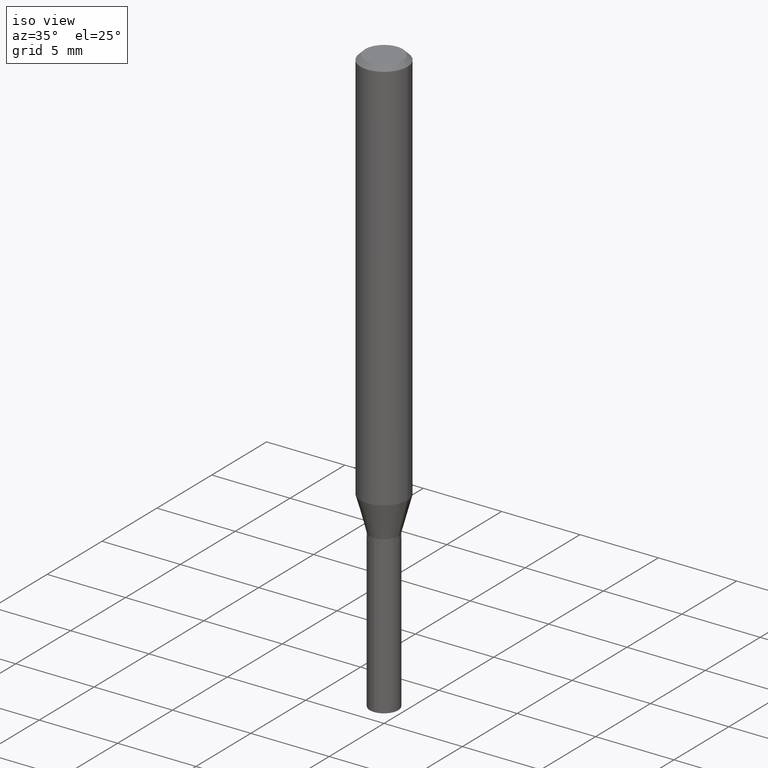
[diagram: clean part render]
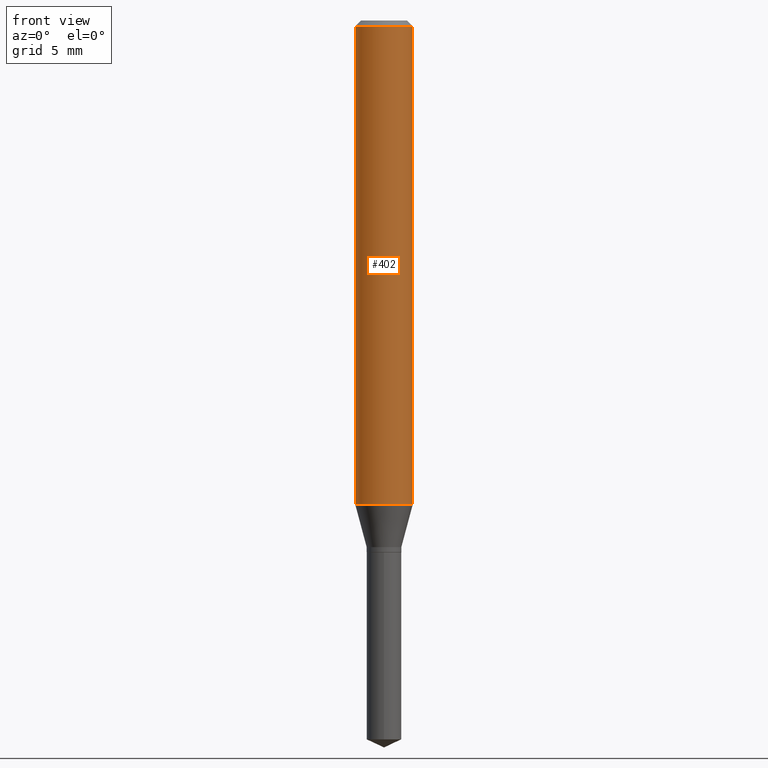
[diagram: tour spotlight — one face highlighted and labeled with its STEP entity id]
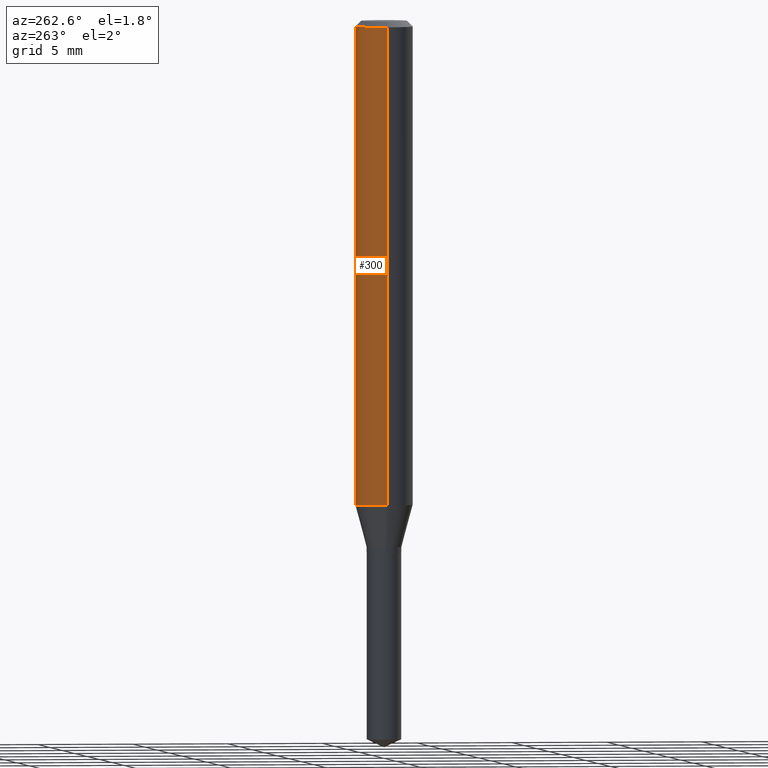
[diagram: tour spotlight — one face highlighted and labeled with its STEP entity id]
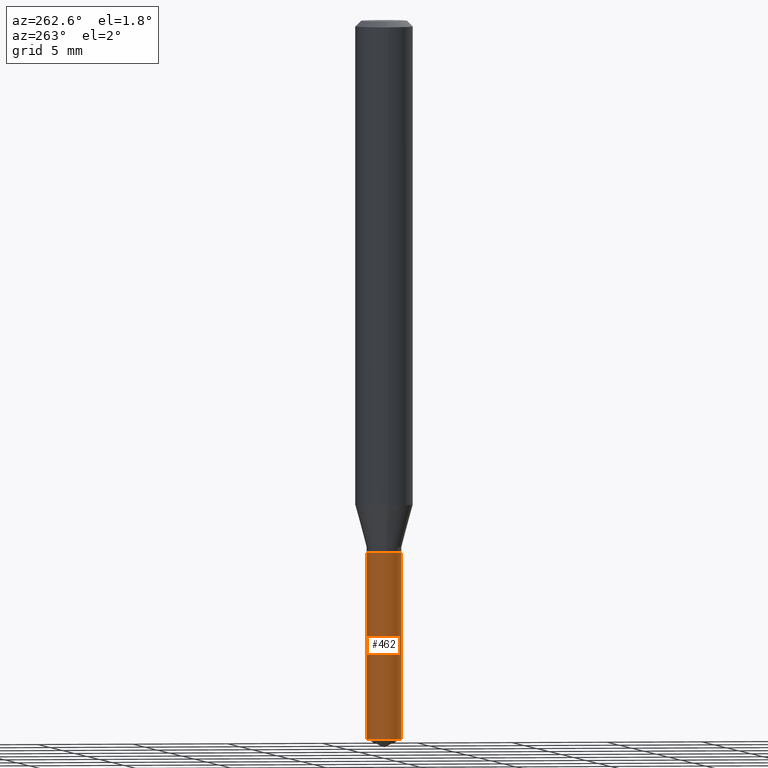
[diagram: tour spotlight — one face highlighted and labeled with its STEP entity id]
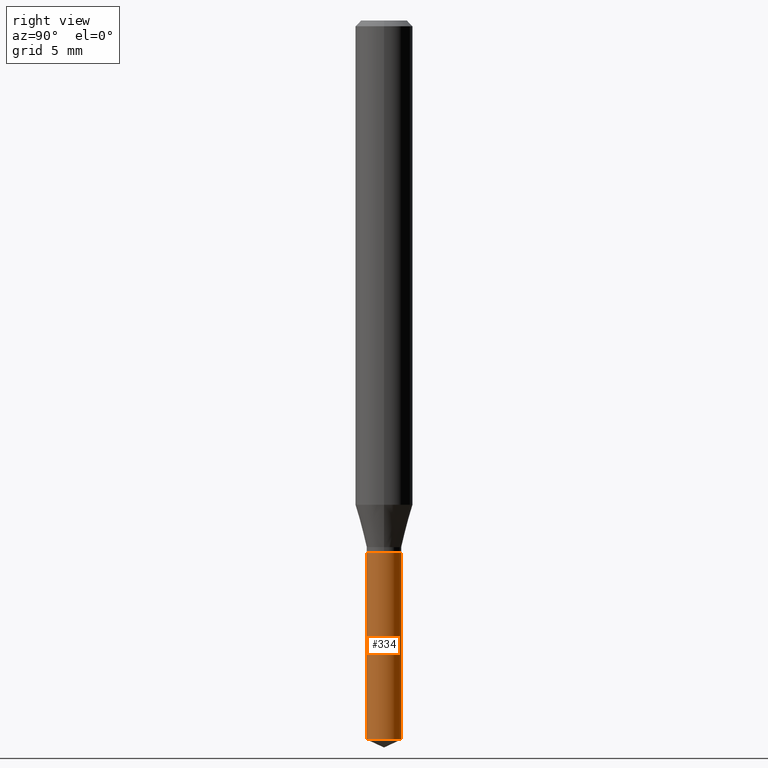
[diagram: tour spotlight — one face highlighted and labeled with its STEP entity id]
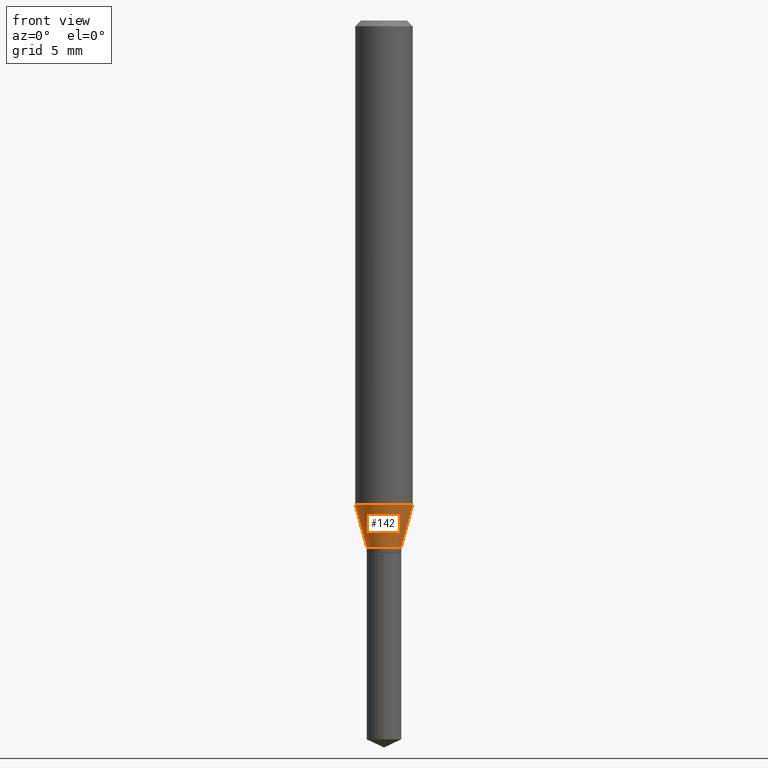
[diagram: tour spotlight — one face highlighted and labeled with its STEP entity id]
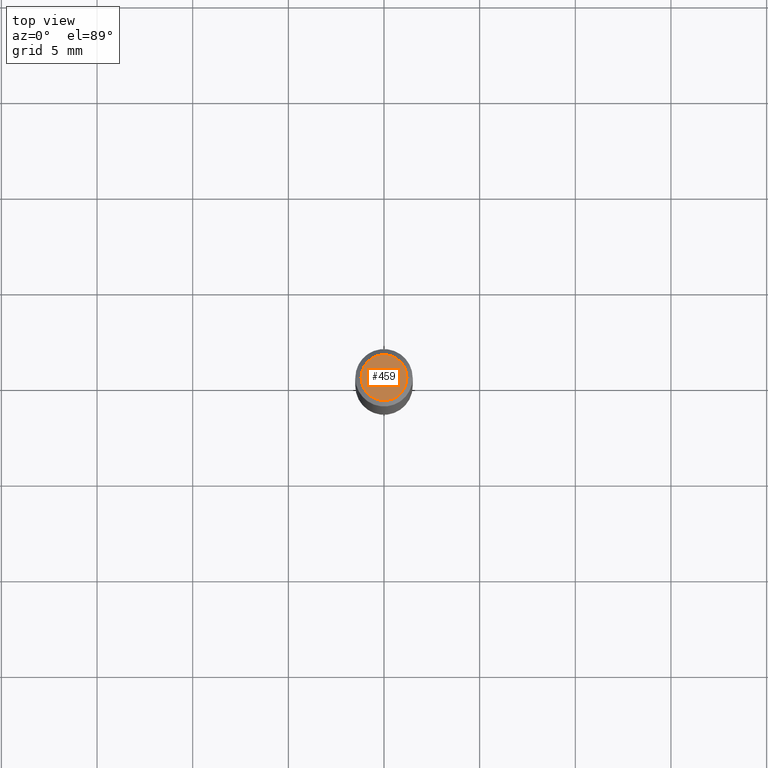
[diagram: tour spotlight — one face highlighted and labeled with its STEP entity id]
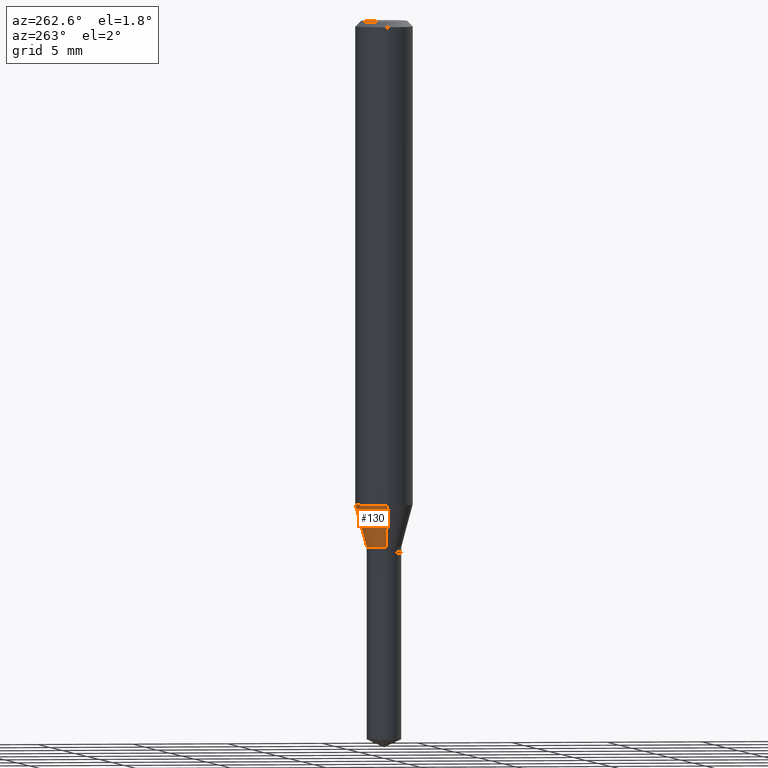
[diagram: tour spotlight — one face highlighted and labeled with its STEP entity id]
A machine part: a face-by-face anatomy tour. The part has 17 B-rep faces; the first image is the clean iso view, then the 7 largest visible faces are spotlighted one at a time (largest first), each with its STEP entity span.

Face 1 — front view, entity #402. In plain terms, the highlighted cylindrical surface (edge-blend (fillet) strip) has radius 1.4999 mm, axis along (-0, 0, 1).
Definition (entity closure, byte-faithful):
#1 = VERTEX_POINT ( 'NONE', #126 ) ;
#24 = CIRCLE ( 'NONE', #479, 0.05905000000000013016 ) ;
#38 = EDGE_CURVE ( 'NONE', #1, #298, #24, .T. ) ;
#58 = CARTESIAN_POINT ( 'NONE',  ( -0.05905000000000006771, 4.195754854663396409E-16, -2.904631170795525045E-30 ) ) ;
#59 = EDGE_CURVE ( 'NONE', #298, #425, #183, .T. ) ;
#71 = CYLINDRICAL_SURFACE ( 'NONE', #86, 0.05905000000000006771 ) ;
#81 = EDGE_CURVE ( 'NONE', #162, #425, #254, .T. ) ;
#86 = AXIS2_PLACEMENT_3D ( 'NONE', #221, #367, #289 ) ;
#104 = FACE_OUTER_BOUND ( 'NONE', #468, .T. ) ;
#126 = CARTESIAN_POINT ( 'NONE',  ( -0.05905000000000013016, -3.059580963016214932E-15, -0.9964700111028879093 ) ) ;
#138 = DIRECTION ( 'NONE',  ( -2.445468806185136597E-29, 3.491481338843145583E-15, 1.000000000000000000 ) ) ;
#149 = CARTESIAN_POINT ( 'NONE',  ( -0.05904999999999999832, -1.340619936080806189E-15, -0.01181000000000007044 ) ) ;
#150 = ORIENTED_EDGE ( 'NONE', *, *, #281, .F. ) ;
#156 = ORIENTED_EDGE ( 'NONE', *, *, #38, .T. ) ;
#162 = VERTEX_POINT ( 'NONE', #149 ) ;
#183 = LINE ( 'NONE', #411, #184 ) ;
#184 = VECTOR ( 'NONE', #228, 39.37007874015748143 ) ;
#214 = DIRECTION ( 'NONE',  ( 1.000000000000000000, -6.982962677686265133E-15, 0.000000000000000000 ) ) ;
#219 = CARTESIAN_POINT ( 'NONE',  ( 0.05904999999999999832, -4.535783407291118600E-16, -0.01181000000000007044 ) ) ;
#221 = CARTESIAN_POINT ( 'NONE',  ( 0.000000000000000000, 0.000000000000000000, 0.000000000000000000 ) ) ;
#228 = DIRECTION ( 'NONE',  ( -2.445468806185136877E-29, 3.491481338843145188E-15, 1.000000000000000000 ) ) ;
#254 = CIRCLE ( 'NONE', #486, 0.05904999999999999832 ) ;
#257 = DIRECTION ( 'NONE',  ( 1.000000000000000000, -6.982962677686266711E-15, 0.000000000000000000 ) ) ;
#281 = EDGE_CURVE ( 'NONE', #1, #162, #396, .T. ) ;
#289 = DIRECTION ( 'NONE',  ( 1.000000000000000000, -6.982962677686266711E-15, 4.876176775795936353E-29 ) ) ;
#298 = VERTEX_POINT ( 'NONE', #324 ) ;
#323 = CARTESIAN_POINT ( 'NONE',  ( 2.436836328451068965E-29, -3.479156448482555214E-15, -0.9964700111028879093 ) ) ;
#324 = CARTESIAN_POINT ( 'NONE',  ( 0.05905000000000013016, -3.891500394599930134E-15, -0.9964700111028879093 ) ) ;
#326 = CARTESIAN_POINT ( 'NONE',  ( 2.888098660104663766E-31, -4.123439461173779647E-17, -0.01181000000000007044 ) ) ;
#352 = ORIENTED_EDGE ( 'NONE', *, *, #59, .T. ) ;
#367 = DIRECTION ( 'NONE',  ( -2.445468806185136597E-29, 3.491481338843145583E-15, 1.000000000000000000 ) ) ;
#396 = LINE ( 'NONE', #58, #423 ) ;
#399 = DIRECTION ( 'NONE',  ( -2.445468806185136877E-29, 3.491481338843145188E-15, 1.000000000000000000 ) ) ;
#402 = ADVANCED_FACE ( 'NONE', ( #104 ), #71, .T. ) ;
#411 = CARTESIAN_POINT ( 'NONE',  ( 0.05905000000000006771, -4.123439461173745257E-16, 2.879382386107503723E-30 ) ) ;
#423 = VECTOR ( 'NONE', #399, 39.37007874015748143 ) ;
#425 = VERTEX_POINT ( 'NONE', #219 ) ;
#457 = ORIENTED_EDGE ( 'NONE', *, *, #81, .F. ) ;
#468 = EDGE_LOOP ( 'NONE', ( #150, #156, #352, #457 ) ) ;
#475 = DIRECTION ( 'NONE',  ( -2.445468806185136597E-29, 3.491481338843145583E-15, 1.000000000000000000 ) ) ;
#479 = AXIS2_PLACEMENT_3D ( 'NONE', #323, #475, #214 ) ;
#486 = AXIS2_PLACEMENT_3D ( 'NONE', #326, #138, #257 ) ;

Face 2 — auxiliary view, entity #300. In plain terms, the highlighted cylindrical surface (edge-blend (fillet) strip) has radius 1.4999 mm, axis along (-0, 0, 1).
Definition (entity closure, byte-faithful):
#1 = VERTEX_POINT ( 'NONE', #126 ) ;
#13 = ORIENTED_EDGE ( 'NONE', *, *, #36, .F. ) ;
#25 = CARTESIAN_POINT ( 'NONE',  ( 2.888098660104663766E-31, -4.123439461173779647E-17, -0.01181000000000007044 ) ) ;
#36 = EDGE_CURVE ( 'NONE', #425, #162, #422, .T. ) ;
#58 = CARTESIAN_POINT ( 'NONE',  ( -0.05905000000000006771, 4.195754854663396409E-16, -2.904631170795525045E-30 ) ) ;
#59 = EDGE_CURVE ( 'NONE', #298, #425, #183, .T. ) ;
#84 = CIRCLE ( 'NONE', #268, 0.05905000000000013016 ) ;
#94 = ORIENTED_EDGE ( 'NONE', *, *, #281, .T. ) ;
#99 = DIRECTION ( 'NONE',  ( -2.445468806185136597E-29, 3.491481338843145583E-15, 1.000000000000000000 ) ) ;
#100 = DIRECTION ( 'NONE',  ( -2.445468806185136597E-29, 3.491481338843145583E-15, 1.000000000000000000 ) ) ;
#111 = ORIENTED_EDGE ( 'NONE', *, *, #59, .F. ) ;
#126 = CARTESIAN_POINT ( 'NONE',  ( -0.05905000000000013016, -3.059580963016214932E-15, -0.9964700111028879093 ) ) ;
#131 = ORIENTED_EDGE ( 'NONE', *, *, #218, .T. ) ;
#149 = CARTESIAN_POINT ( 'NONE',  ( -0.05904999999999999832, -1.340619936080806189E-15, -0.01181000000000007044 ) ) ;
#162 = VERTEX_POINT ( 'NONE', #149 ) ;
#169 = DIRECTION ( 'NONE',  ( 1.000000000000000000, -6.982962677686266711E-15, 0.000000000000000000 ) ) ;
#170 = FACE_OUTER_BOUND ( 'NONE', #243, .T. ) ;
#175 = CARTESIAN_POINT ( 'NONE',  ( 2.436836328451068965E-29, -3.479156448482555214E-15, -0.9964700111028879093 ) ) ;
#183 = LINE ( 'NONE', #411, #184 ) ;
#184 = VECTOR ( 'NONE', #228, 39.37007874015748143 ) ;
#218 = EDGE_CURVE ( 'NONE', #298, #1, #84, .T. ) ;
#219 = CARTESIAN_POINT ( 'NONE',  ( 0.05904999999999999832, -4.535783407291118600E-16, -0.01181000000000007044 ) ) ;
#228 = DIRECTION ( 'NONE',  ( -2.445468806185136877E-29, 3.491481338843145188E-15, 1.000000000000000000 ) ) ;
#243 = EDGE_LOOP ( 'NONE', ( #131, #94, #13, #111 ) ) ;
#247 = DIRECTION ( 'NONE',  ( 1.000000000000000000, -6.982962677686265133E-15, 0.000000000000000000 ) ) ;
#268 = AXIS2_PLACEMENT_3D ( 'NONE', #175, #474, #247 ) ;
#281 = EDGE_CURVE ( 'NONE', #1, #162, #396, .T. ) ;
#298 = VERTEX_POINT ( 'NONE', #324 ) ;
#300 = ADVANCED_FACE ( 'NONE', ( #170 ), #476, .T. ) ;
#324 = CARTESIAN_POINT ( 'NONE',  ( 0.05905000000000013016, -3.891500394599930134E-15, -0.9964700111028879093 ) ) ;
#366 = AXIS2_PLACEMENT_3D ( 'NONE', #438, #100, #440 ) ;
#396 = LINE ( 'NONE', #58, #423 ) ;
#399 = DIRECTION ( 'NONE',  ( -2.445468806185136877E-29, 3.491481338843145188E-15, 1.000000000000000000 ) ) ;
#411 = CARTESIAN_POINT ( 'NONE',  ( 0.05905000000000006771, -4.123439461173745257E-16, 2.879382386107503723E-30 ) ) ;
#413 = AXIS2_PLACEMENT_3D ( 'NONE', #25, #99, #169 ) ;
#422 = CIRCLE ( 'NONE', #413, 0.05904999999999999832 ) ;
#423 = VECTOR ( 'NONE', #399, 39.37007874015748143 ) ;
#425 = VERTEX_POINT ( 'NONE', #219 ) ;
#438 = CARTESIAN_POINT ( 'NONE',  ( 0.000000000000000000, 0.000000000000000000, 0.000000000000000000 ) ) ;
#440 = DIRECTION ( 'NONE',  ( 1.000000000000000000, -6.982962677686266711E-15, 4.876176775795936353E-29 ) ) ;
#474 = DIRECTION ( 'NONE',  ( -2.445468806185136597E-29, 3.491481338843145583E-15, 1.000000000000000000 ) ) ;
#476 = CYLINDRICAL_SURFACE ( 'NONE', #366, 0.05905000000000006771 ) ;

Face 3 — auxiliary view, entity #462. In plain terms, the highlighted cylindrical surface (edge-blend (fillet) strip) has radius 0.9055 mm, axis along (-0, 0, 1).
Definition (entity closure, byte-faithful):
#10 = CIRCLE ( 'NONE', #163, 0.03564999999999999419 ) ;
#17 = AXIS2_PLACEMENT_3D ( 'NONE', #108, #262, #261 ) ;
#22 = VERTEX_POINT ( 'NONE', #357 ) ;
#65 = EDGE_CURVE ( 'NONE', #379, #22, #375, .T. ) ;
#72 = LINE ( 'NONE', #110, #234 ) ;
#74 = VECTOR ( 'NONE', #340, 39.37007874015748143 ) ;
#85 = DIRECTION ( 'NONE',  ( -2.445470214571802116E-29, 3.491479321953280158E-15, 1.000000000000000000 ) ) ;
#87 = EDGE_CURVE ( 'NONE', #236, #390, #72, .T. ) ;
#108 = CARTESIAN_POINT ( 'NONE',  ( 2.676565608369631794E-29, -3.821426325363822773E-15, -1.094499999999999806 ) ) ;
#109 = CARTESIAN_POINT ( 'NONE',  ( 2.533084852985119133E-16, 0.03564999999999483860, -1.479476131986774412 ) ) ;
#110 = CARTESIAN_POINT ( 'NONE',  ( -2.489426194594886595E-16, -0.03565000000000382446, -1.094499999999999806 ) ) ;
#159 = EDGE_LOOP ( 'NONE', ( #427, #164, #274, #301 ) ) ;
#163 = AXIS2_PLACEMENT_3D ( 'NONE', #172, #325, #478 ) ;
#164 = ORIENTED_EDGE ( 'NONE', *, *, #322, .T. ) ;
#172 = CARTESIAN_POINT ( 'NONE',  ( 3.618013272464351885E-29, -5.165562529641202202E-15, -1.479476131986774412 ) ) ;
#222 = DIRECTION ( 'NONE',  ( -2.445470214571802396E-29, 3.491479321953280158E-15, 1.000000000000000000 ) ) ;
#234 = VECTOR ( 'NONE', #222, 39.37007874015748143 ) ;
#236 = VERTEX_POINT ( 'NONE', #319 ) ;
#261 = DIRECTION ( 'NONE',  ( -6.982962677686265922E-15, -1.000000000000000000, 3.831483862081715365E-15 ) ) ;
#262 = DIRECTION ( 'NONE',  ( -2.445470214571802116E-29, 3.491479321953280158E-15, 1.000000000000000000 ) ) ;
#269 = CARTESIAN_POINT ( 'NONE',  ( 2.533084852985024470E-16, 0.03564999999999617780, -1.094500000000000028 ) ) ;
#274 = ORIENTED_EDGE ( 'NONE', *, *, #87, .T. ) ;
#301 = ORIENTED_EDGE ( 'NONE', *, *, #485, .F. ) ;
#319 = CARTESIAN_POINT ( 'NONE',  ( -2.489426194594792425E-16, -0.03565000000000517755, -1.479476131986774412 ) ) ;
#322 = EDGE_CURVE ( 'NONE', #379, #236, #10, .T. ) ;
#325 = DIRECTION ( 'NONE',  ( -2.445470214571802116E-29, 3.491479321953280158E-15, 1.000000000000000000 ) ) ;
#339 = CYLINDRICAL_SURFACE ( 'NONE', #17, 0.03565000000000000113 ) ;
#340 = DIRECTION ( 'NONE',  ( -2.445470214571802396E-29, 3.491479321953280158E-15, 1.000000000000000000 ) ) ;
#351 = AXIS2_PLACEMENT_3D ( 'NONE', #458, #85, #461 ) ;
#357 = CARTESIAN_POINT ( 'NONE',  ( 2.533084852985119133E-16, 0.03564999999999618474, -1.094500000000000028 ) ) ;
#374 = FACE_OUTER_BOUND ( 'NONE', #159, .T. ) ;
#375 = LINE ( 'NONE', #269, #74 ) ;
#379 = VERTEX_POINT ( 'NONE', #109 ) ;
#390 = VERTEX_POINT ( 'NONE', #447 ) ;
#407 = CIRCLE ( 'NONE', #351, 0.03565000000000000113 ) ;
#427 = ORIENTED_EDGE ( 'NONE', *, *, #65, .F. ) ;
#447 = CARTESIAN_POINT ( 'NONE',  ( -2.489426194594886595E-16, -0.03565000000000382446, -1.094499999999999806 ) ) ;
#458 = CARTESIAN_POINT ( 'NONE',  ( 2.676565608369631794E-29, -3.821426325363822773E-15, -1.094499999999999806 ) ) ;
#461 = DIRECTION ( 'NONE',  ( -6.982962677686265922E-15, -1.000000000000000000, 3.831483862081715365E-15 ) ) ;
#462 = ADVANCED_FACE ( 'NONE', ( #374 ), #339, .T. ) ;
#478 = DIRECTION ( 'NONE',  ( -6.982962677686265922E-15, -1.000000000000000000, 0.000000000000000000 ) ) ;
#485 = EDGE_CURVE ( 'NONE', #22, #390, #407, .T. ) ;

Face 4 — right view, entity #334. In plain terms, the highlighted cylindrical surface (edge-blend (fillet) strip) has radius 0.9055 mm, axis along (-0, 0, 1).
Definition (entity closure, byte-faithful):
#8 = EDGE_CURVE ( 'NONE', #236, #379, #198, .T. ) ;
#22 = VERTEX_POINT ( 'NONE', #357 ) ;
#32 = FACE_OUTER_BOUND ( 'NONE', #250, .T. ) ;
#35 = DIRECTION ( 'NONE',  ( -6.982962677686265922E-15, -1.000000000000000000, 3.831483862081715365E-15 ) ) ;
#47 = ORIENTED_EDGE ( 'NONE', *, *, #65, .T. ) ;
#56 = DIRECTION ( 'NONE',  ( -6.982962677686265922E-15, -1.000000000000000000, 0.000000000000000000 ) ) ;
#65 = EDGE_CURVE ( 'NONE', #379, #22, #375, .T. ) ;
#67 = CYLINDRICAL_SURFACE ( 'NONE', #480, 0.03565000000000000113 ) ;
#72 = LINE ( 'NONE', #110, #234 ) ;
#74 = VECTOR ( 'NONE', #340, 39.37007874015748143 ) ;
#83 = ORIENTED_EDGE ( 'NONE', *, *, #87, .F. ) ;
#87 = EDGE_CURVE ( 'NONE', #236, #390, #72, .T. ) ;
#105 = AXIS2_PLACEMENT_3D ( 'NONE', #317, #394, #56 ) ;
#109 = CARTESIAN_POINT ( 'NONE',  ( 2.533084852985119133E-16, 0.03564999999999483860, -1.479476131986774412 ) ) ;
#110 = CARTESIAN_POINT ( 'NONE',  ( -2.489426194594886595E-16, -0.03565000000000382446, -1.094499999999999806 ) ) ;
#198 = CIRCLE ( 'NONE', #105, 0.03564999999999999419 ) ;
#215 = DIRECTION ( 'NONE',  ( -2.445470214571802116E-29, 3.491479321953280158E-15, 1.000000000000000000 ) ) ;
#222 = DIRECTION ( 'NONE',  ( -2.445470214571802396E-29, 3.491479321953280158E-15, 1.000000000000000000 ) ) ;
#227 = CARTESIAN_POINT ( 'NONE',  ( 2.676565608369631794E-29, -3.821426325363822773E-15, -1.094499999999999806 ) ) ;
#234 = VECTOR ( 'NONE', #222, 39.37007874015748143 ) ;
#236 = VERTEX_POINT ( 'NONE', #319 ) ;
#245 = AXIS2_PLACEMENT_3D ( 'NONE', #227, #342, #35 ) ;
#250 = EDGE_LOOP ( 'NONE', ( #316, #47, #435, #83 ) ) ;
#269 = CARTESIAN_POINT ( 'NONE',  ( 2.533084852985024470E-16, 0.03564999999999617780, -1.094500000000000028 ) ) ;
#288 = DIRECTION ( 'NONE',  ( -6.982962677686265922E-15, -1.000000000000000000, 3.831483862081715365E-15 ) ) ;
#316 = ORIENTED_EDGE ( 'NONE', *, *, #8, .T. ) ;
#317 = CARTESIAN_POINT ( 'NONE',  ( 3.618013272464351885E-29, -5.165562529641202202E-15, -1.479476131986774412 ) ) ;
#319 = CARTESIAN_POINT ( 'NONE',  ( -2.489426194594792425E-16, -0.03565000000000517755, -1.479476131986774412 ) ) ;
#334 = ADVANCED_FACE ( 'NONE', ( #32 ), #67, .T. ) ;
#340 = DIRECTION ( 'NONE',  ( -2.445470214571802396E-29, 3.491479321953280158E-15, 1.000000000000000000 ) ) ;
#342 = DIRECTION ( 'NONE',  ( -2.445470214571802116E-29, 3.491479321953280158E-15, 1.000000000000000000 ) ) ;
#357 = CARTESIAN_POINT ( 'NONE',  ( 2.533084852985119133E-16, 0.03564999999999618474, -1.094500000000000028 ) ) ;
#370 = EDGE_CURVE ( 'NONE', #390, #22, #432, .T. ) ;
#375 = LINE ( 'NONE', #269, #74 ) ;
#379 = VERTEX_POINT ( 'NONE', #109 ) ;
#390 = VERTEX_POINT ( 'NONE', #447 ) ;
#394 = DIRECTION ( 'NONE',  ( -2.445470214571802116E-29, 3.491479321953280158E-15, 1.000000000000000000 ) ) ;
#404 = CARTESIAN_POINT ( 'NONE',  ( 2.676565608369631794E-29, -3.821426325363822773E-15, -1.094499999999999806 ) ) ;
#432 = CIRCLE ( 'NONE', #245, 0.03565000000000000113 ) ;
#435 = ORIENTED_EDGE ( 'NONE', *, *, #370, .F. ) ;
#447 = CARTESIAN_POINT ( 'NONE',  ( -2.489426194594886595E-16, -0.03565000000000382446, -1.094499999999999806 ) ) ;
#480 = AXIS2_PLACEMENT_3D ( 'NONE', #404, #215, #288 ) ;

Face 5 — front view, entity #142. In plain terms, the highlighted conical surface has half-angle 15 deg.
Definition (entity closure, byte-faithful):
#1 = VERTEX_POINT ( 'NONE', #126 ) ;
#3 = DIRECTION ( 'NONE',  ( 1.000000000000000000, -6.982962677686268288E-15, 0.000000000000000000 ) ) ;
#6 = CARTESIAN_POINT ( 'NONE',  ( 2.650399092143451000E-29, -3.784067475038201019E-15, -1.083799999999999875 ) ) ;
#21 = DIRECTION ( 'NONE',  ( 0.2588190451025213501, 1.565188264969621968E-15, 0.9659258262890682012 ) ) ;
#24 = CIRCLE ( 'NONE', #479, 0.05905000000000013016 ) ;
#38 = EDGE_CURVE ( 'NONE', #1, #298, #24, .T. ) ;
#70 = DIRECTION ( 'NONE',  ( -0.2588190451025213501, 5.211531920934551042E-15, 0.9659258262890682012 ) ) ;
#102 = CARTESIAN_POINT ( 'NONE',  ( 0.03564999999999998725, -4.033010094497716106E-15, -1.083799999999999875 ) ) ;
#123 = ORIENTED_EDGE ( 'NONE', *, *, #38, .F. ) ;
#126 = CARTESIAN_POINT ( 'NONE',  ( -0.05905000000000013016, -3.059580963016214932E-15, -0.9964700111028879093 ) ) ;
#142 = ADVANCED_FACE ( 'NONE', ( #187 ), #176, .T. ) ;
#154 = AXIS2_PLACEMENT_3D ( 'NONE', #376, #180, #333 ) ;
#176 = CONICAL_SURFACE ( 'NONE', #244, 0.03564999999999998725, 0.2617993877991500740 ) ;
#180 = DIRECTION ( 'NONE',  ( -2.445468806185136597E-29, 3.491481338843145583E-15, 1.000000000000000000 ) ) ;
#181 = CARTESIAN_POINT ( 'NONE',  ( -0.03564999999999998725, -3.548565544567824927E-15, -1.083799999999999875 ) ) ;
#187 = FACE_OUTER_BOUND ( 'NONE', #320, .T. ) ;
#192 = VERTEX_POINT ( 'NONE', #102 ) ;
#214 = DIRECTION ( 'NONE',  ( 1.000000000000000000, -6.982962677686265133E-15, 0.000000000000000000 ) ) ;
#239 = ORIENTED_EDGE ( 'NONE', *, *, #341, .T. ) ;
#244 = AXIS2_PLACEMENT_3D ( 'NONE', #6, #439, #3 ) ;
#248 = ORIENTED_EDGE ( 'NONE', *, *, #393, .F. ) ;
#263 = LINE ( 'NONE', #414, #294 ) ;
#294 = VECTOR ( 'NONE', #70, 39.37007874015747433 ) ;
#298 = VERTEX_POINT ( 'NONE', #324 ) ;
#309 = EDGE_CURVE ( 'NONE', #192, #298, #362, .T. ) ;
#313 = VECTOR ( 'NONE', #21, 39.37007874015747433 ) ;
#320 = EDGE_LOOP ( 'NONE', ( #248, #239, #343, #123 ) ) ;
#323 = CARTESIAN_POINT ( 'NONE',  ( 2.436836328451068965E-29, -3.479156448482555214E-15, -0.9964700111028879093 ) ) ;
#324 = CARTESIAN_POINT ( 'NONE',  ( 0.05905000000000013016, -3.891500394599930134E-15, -0.9964700111028879093 ) ) ;
#333 = DIRECTION ( 'NONE',  ( 1.000000000000000000, -6.982962677686268288E-15, 0.000000000000000000 ) ) ;
#341 = EDGE_CURVE ( 'NONE', #465, #192, #455, .T. ) ;
#343 = ORIENTED_EDGE ( 'NONE', *, *, #309, .T. ) ;
#362 = LINE ( 'NONE', #403, #313 ) ;
#376 = CARTESIAN_POINT ( 'NONE',  ( 2.650399092143451000E-29, -3.784067475038201019E-15, -1.083799999999999875 ) ) ;
#393 = EDGE_CURVE ( 'NONE', #465, #1, #263, .T. ) ;
#403 = CARTESIAN_POINT ( 'NONE',  ( 0.03564999999999998725, -4.033010094497716106E-15, -1.083799999999999875 ) ) ;
#414 = CARTESIAN_POINT ( 'NONE',  ( -0.03564999999999998725, -3.530758989739725196E-15, -1.083799999999999875 ) ) ;
#439 = DIRECTION ( 'NONE',  ( -2.445468806185136597E-29, 3.491481338843145583E-15, 1.000000000000000000 ) ) ;
#455 = CIRCLE ( 'NONE', #154, 0.03564999999999998725 ) ;
#465 = VERTEX_POINT ( 'NONE', #181 ) ;
#475 = DIRECTION ( 'NONE',  ( -2.445468806185136597E-29, 3.491481338843145583E-15, 1.000000000000000000 ) ) ;
#479 = AXIS2_PLACEMENT_3D ( 'NONE', #323, #475, #214 ) ;

Face 6 — top view, entity #459. In plain terms, the highlighted planar face has unit normal (0, -0, -1).
Definition (entity closure, byte-faithful):
#20 = ORIENTED_EDGE ( 'NONE', *, *, #293, .T. ) ;
#28 = DIRECTION ( 'NONE',  ( -2.445468806185136597E-29, 3.491481338843145583E-15, 1.000000000000000000 ) ) ;
#34 = AXIS2_PLACEMENT_3D ( 'NONE', #62, #28, #259 ) ;
#41 = AXIS2_PLACEMENT_3D ( 'NONE', #68, #73, #443 ) ;
#53 = ORIENTED_EDGE ( 'NONE', *, *, #235, .T. ) ;
#54 = DIRECTION ( 'NONE',  ( 1.000000000000000000, -6.982962677686266711E-15, 4.876185090822587894E-29 ) ) ;
#62 = CARTESIAN_POINT ( 'NONE',  ( 8.265746106709734507E-48, -1.180129479067563789E-33, -3.380025165646692144E-19 ) ) ;
#68 = CARTESIAN_POINT ( 'NONE',  ( 4.132873053354867254E-48, -5.900647395337818946E-34, -1.690012582823346072E-19 ) ) ;
#73 = DIRECTION ( 'NONE',  ( 2.438088387897960049E-29, -3.491481338843145188E-15, -1.000000000000000000 ) ) ;
#133 = CARTESIAN_POINT ( 'NONE',  ( -0.04724000000000000421, 3.504923541997677355E-16, -3.380025165670481712E-19 ) ) ;
#199 = CIRCLE ( 'NONE', #305, 0.04724000000000000421 ) ;
#207 = VERTEX_POINT ( 'NONE', #133 ) ;
#235 = EDGE_CURVE ( 'NONE', #308, #207, #199, .T. ) ;
#259 = DIRECTION ( 'NONE',  ( 1.000000000000000000, -6.982962677686266711E-15, 4.876185090822587894E-29 ) ) ;
#292 = FACE_OUTER_BOUND ( 'NONE', #307, .T. ) ;
#293 = EDGE_CURVE ( 'NONE', #207, #308, #444, .T. ) ;
#305 = AXIS2_PLACEMENT_3D ( 'NONE', #359, #434, #54 ) ;
#307 = EDGE_LOOP ( 'NONE', ( #20, #53 ) ) ;
#308 = VERTEX_POINT ( 'NONE', #354 ) ;
#354 = CARTESIAN_POINT ( 'NONE',  ( 0.04724000000000000421, -3.852183633974369345E-16, -3.380025165621689721E-19 ) ) ;
#359 = CARTESIAN_POINT ( 'NONE',  ( 8.265746106709734507E-48, -1.180129479067563789E-33, -3.380025165646692144E-19 ) ) ;
#412 = PLANE ( 'NONE',  #41 ) ;
#434 = DIRECTION ( 'NONE',  ( -2.445468806185136597E-29, 3.491481338843145583E-15, 1.000000000000000000 ) ) ;
#443 = DIRECTION ( 'NONE',  ( -1.000000000000000000, 6.982962677686265922E-15, -4.876176775795935793E-29 ) ) ;
#444 = CIRCLE ( 'NONE', #34, 0.04724000000000000421 ) ;
#459 = ADVANCED_FACE ( 'NONE', ( #292 ), #412, .F. ) ;

Face 7 — auxiliary view, entity #130. In plain terms, the highlighted conical surface has half-angle 15 deg.
Definition (entity closure, byte-faithful):
#1 = VERTEX_POINT ( 'NONE', #126 ) ;
#21 = DIRECTION ( 'NONE',  ( 0.2588190451025213501, 1.565188264969621968E-15, 0.9659258262890682012 ) ) ;
#45 = DIRECTION ( 'NONE',  ( 1.000000000000000000, -6.982962677686268288E-15, 0.000000000000000000 ) ) ;
#46 = ORIENTED_EDGE ( 'NONE', *, *, #309, .F. ) ;
#70 = DIRECTION ( 'NONE',  ( -0.2588190451025213501, 5.211531920934551042E-15, 0.9659258262890682012 ) ) ;
#77 = DIRECTION ( 'NONE',  ( -2.445468806185136597E-29, 3.491481338843145583E-15, 1.000000000000000000 ) ) ;
#84 = CIRCLE ( 'NONE', #268, 0.05905000000000013016 ) ;
#88 = ORIENTED_EDGE ( 'NONE', *, *, #218, .F. ) ;
#90 = ORIENTED_EDGE ( 'NONE', *, *, #393, .T. ) ;
#101 = AXIS2_PLACEMENT_3D ( 'NONE', #135, #77, #45 ) ;
#102 = CARTESIAN_POINT ( 'NONE',  ( 0.03564999999999998725, -4.033010094497716106E-15, -1.083799999999999875 ) ) ;
#126 = CARTESIAN_POINT ( 'NONE',  ( -0.05905000000000013016, -3.059580963016214932E-15, -0.9964700111028879093 ) ) ;
#130 = ADVANCED_FACE ( 'NONE', ( #477 ), #312, .T. ) ;
#135 = CARTESIAN_POINT ( 'NONE',  ( 2.650399092143451000E-29, -3.784067475038201019E-15, -1.083799999999999875 ) ) ;
#175 = CARTESIAN_POINT ( 'NONE',  ( 2.436836328451068965E-29, -3.479156448482555214E-15, -0.9964700111028879093 ) ) ;
#181 = CARTESIAN_POINT ( 'NONE',  ( -0.03564999999999998725, -3.548565544567824927E-15, -1.083799999999999875 ) ) ;
#182 = EDGE_CURVE ( 'NONE', #192, #465, #365, .T. ) ;
#192 = VERTEX_POINT ( 'NONE', #102 ) ;
#206 = DIRECTION ( 'NONE',  ( -2.445468806185136597E-29, 3.491481338843145583E-15, 1.000000000000000000 ) ) ;
#218 = EDGE_CURVE ( 'NONE', #298, #1, #84, .T. ) ;
#247 = DIRECTION ( 'NONE',  ( 1.000000000000000000, -6.982962677686265133E-15, 0.000000000000000000 ) ) ;
#263 = LINE ( 'NONE', #414, #294 ) ;
#268 = AXIS2_PLACEMENT_3D ( 'NONE', #175, #474, #247 ) ;
#284 = DIRECTION ( 'NONE',  ( 1.000000000000000000, -6.982962677686268288E-15, 0.000000000000000000 ) ) ;
#294 = VECTOR ( 'NONE', #70, 39.37007874015747433 ) ;
#298 = VERTEX_POINT ( 'NONE', #324 ) ;
#304 = AXIS2_PLACEMENT_3D ( 'NONE', #481, #206, #284 ) ;
#309 = EDGE_CURVE ( 'NONE', #192, #298, #362, .T. ) ;
#312 = CONICAL_SURFACE ( 'NONE', #101, 0.03564999999999998725, 0.2617993877991500740 ) ;
#313 = VECTOR ( 'NONE', #21, 39.37007874015747433 ) ;
#324 = CARTESIAN_POINT ( 'NONE',  ( 0.05905000000000013016, -3.891500394599930134E-15, -0.9964700111028879093 ) ) ;
#362 = LINE ( 'NONE', #403, #313 ) ;
#365 = CIRCLE ( 'NONE', #304, 0.03564999999999998725 ) ;
#387 = EDGE_LOOP ( 'NONE', ( #430, #90, #88, #46 ) ) ;
#393 = EDGE_CURVE ( 'NONE', #465, #1, #263, .T. ) ;
#403 = CARTESIAN_POINT ( 'NONE',  ( 0.03564999999999998725, -4.033010094497716106E-15, -1.083799999999999875 ) ) ;
#414 = CARTESIAN_POINT ( 'NONE',  ( -0.03564999999999998725, -3.530758989739725196E-15, -1.083799999999999875 ) ) ;
#430 = ORIENTED_EDGE ( 'NONE', *, *, #182, .T. ) ;
#465 = VERTEX_POINT ( 'NONE', #181 ) ;
#474 = DIRECTION ( 'NONE',  ( -2.445468806185136597E-29, 3.491481338843145583E-15, 1.000000000000000000 ) ) ;
#477 = FACE_OUTER_BOUND ( 'NONE', #387, .T. ) ;
#481 = CARTESIAN_POINT ( 'NONE',  ( 2.650399092143451000E-29, -3.784067475038201019E-15, -1.083799999999999875 ) ) ;